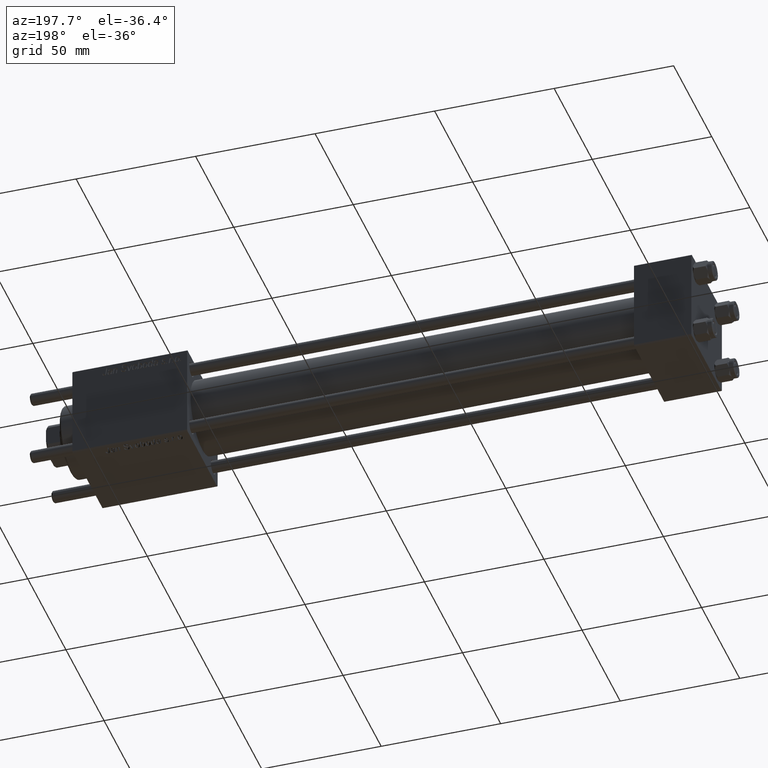
[diagram: clean part render]
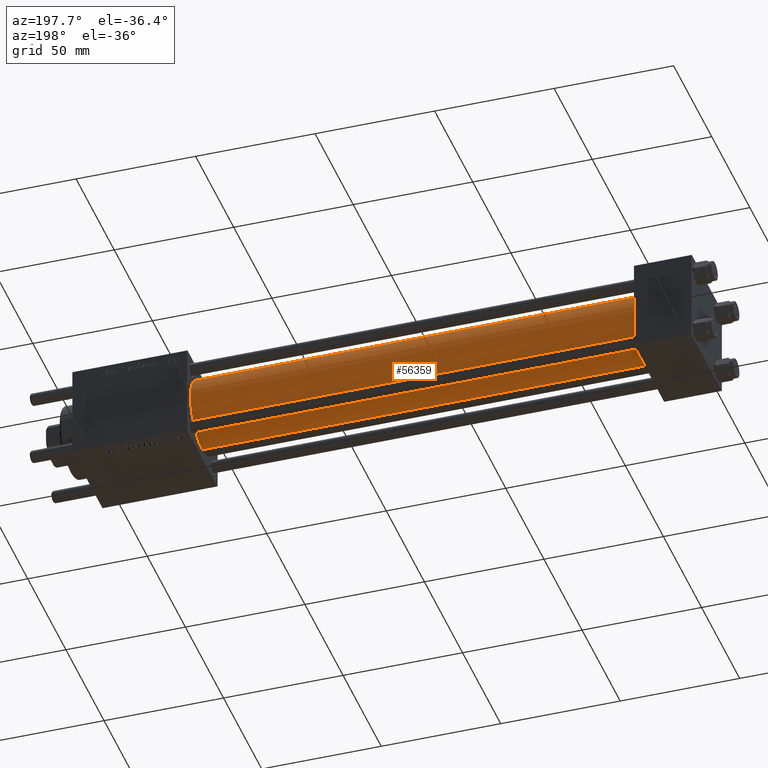
[diagram: same view with one face highlighted and labeled with its STEP entity id]
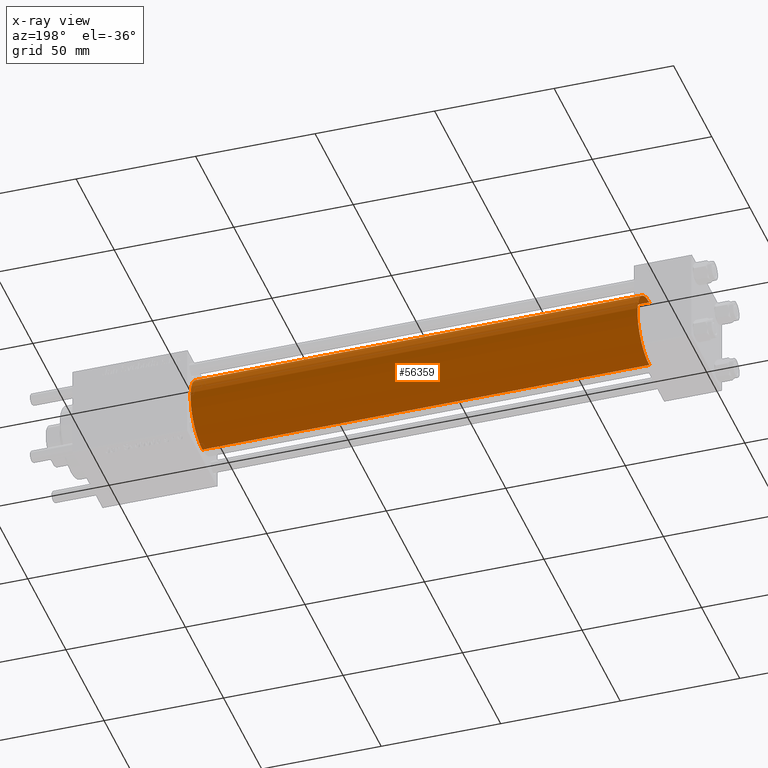
[diagram: x-ray of the same camera — body ghosted, the highlighted face saturated]
A machine part, auxiliary view. The second image highlights one B-rep face of the part: STEP entity #56359.
The next image is the same camera in x-ray: the body ghosted, the highlighted face saturated — about 0% of this face is hidden behind the body in this view.
In plain terms, the highlighted cylindrical surface (partial cylindrical patch) has radius 15.5 mm, axis along (-1, -0, -0).
Its self-contained STEP definition (entity closure, byte-faithful):
#1137 = LINE ( 'NONE', #5418, #15061 ) ;
#2729 = VERTEX_POINT ( 'NONE', #22041 ) ;
#5018 = ORIENTED_EDGE ( 'NONE', *, *, #25726, .T. ) ;
#5418 = CARTESIAN_POINT ( 'NONE',  ( 211.0000000000000000, -7.038826752868131828E-16, -15.50000000000000000 ) ) ;
#8361 = VECTOR ( 'NONE', #14295, 1000.000000000000000 ) ;
#14084 = DIRECTION ( 'NONE',  ( 1.000000000000000000, 0.000000000000000000, 0.000000000000000000 ) ) ;
#14157 = DIRECTION ( 'NONE',  ( 0.000000000000000000, 0.000000000000000000, 1.000000000000000000 ) ) ;
#14295 = DIRECTION ( 'NONE',  ( -1.000000000000000000, -0.000000000000000000, -0.000000000000000000 ) ) ;
#15061 = VECTOR ( 'NONE', #22914, 1000.000000000000000 ) ;
#18600 = LINE ( 'NONE', #36093, #8361 ) ;
#21203 = EDGE_CURVE ( 'NONE', #37595, #32059, #40554, .T. ) ;
#22041 = CARTESIAN_POINT ( 'NONE',  ( 23.99999999999999289, -2.602085213965210642E-15, 15.50000000000000000 ) ) ;
#22802 = ORIENTED_EDGE ( 'NONE', *, *, #24006, .T. ) ;
#22914 = DIRECTION ( 'NONE',  ( -1.000000000000000000, -0.000000000000000000, -0.000000000000000000 ) ) ;
#23253 = CIRCLE ( 'NONE', #37912, 15.50000000000000000 ) ;
#24006 = EDGE_CURVE ( 'NONE', #43369, #2729, #23253, .T. ) ;
#25726 = EDGE_CURVE ( 'NONE', #37595, #43369, #1137, .T. ) ;
#25939 = CARTESIAN_POINT ( 'NONE',  ( 23.99999999999999289, -7.038826752868131828E-16, -15.50000000000000000 ) ) ;
#25941 = CARTESIAN_POINT ( 'NONE',  ( 23.99999999999999289, -2.602085213965210642E-15, 0.000000000000000000 ) ) ;
#26977 = DIRECTION ( 'NONE',  ( -1.000000000000000000, -0.000000000000000000, -0.000000000000000000 ) ) ;
#27269 = CARTESIAN_POINT ( 'NONE',  ( 211.0000000000000000, -2.602085213965210642E-15, 0.000000000000000000 ) ) ;
#27310 = DIRECTION ( 'NONE',  ( 0.000000000000000000, 0.000000000000000000, -1.000000000000000000 ) ) ;
#30612 = EDGE_LOOP ( 'NONE', ( #49510, #5018, #22802, #39623 ) ) ;
#32059 = VERTEX_POINT ( 'NONE', #39339 ) ;
#34405 = AXIS2_PLACEMENT_3D ( 'NONE', #27269, #26977, #53053 ) ;
#36093 = CARTESIAN_POINT ( 'NONE',  ( 211.0000000000000000, -2.602085213965210642E-15, 15.50000000000000000 ) ) ;
#37595 = VERTEX_POINT ( 'NONE', #45588 ) ;
#37912 = AXIS2_PLACEMENT_3D ( 'NONE', #25941, #39977, #14157 ) ;
#39339 = CARTESIAN_POINT ( 'NONE',  ( 211.0000000000000000, -2.602085213965210642E-15, 15.50000000000000000 ) ) ;
#39623 = ORIENTED_EDGE ( 'NONE', *, *, #52139, .F. ) ;
#39977 = DIRECTION ( 'NONE',  ( 1.000000000000000000, 0.000000000000000000, 0.000000000000000000 ) ) ;
#40554 = CIRCLE ( 'NONE', #49736, 15.50000000000000000 ) ;
#41017 = CYLINDRICAL_SURFACE ( 'NONE', #34405, 15.50000000000000000 ) ;
#43369 = VERTEX_POINT ( 'NONE', #25939 ) ;
#45588 = CARTESIAN_POINT ( 'NONE',  ( 211.0000000000000000, -7.038826752868131828E-16, -15.50000000000000000 ) ) ;
#49044 = FACE_OUTER_BOUND ( 'NONE', #30612, .T. ) ;
#49510 = ORIENTED_EDGE ( 'NONE', *, *, #21203, .F. ) ;
#49736 = AXIS2_PLACEMENT_3D ( 'NONE', #53376, #14084, #27310 ) ;
#52139 = EDGE_CURVE ( 'NONE', #32059, #2729, #18600, .T. ) ;
#53053 = DIRECTION ( 'NONE',  ( 0.000000000000000000, 0.000000000000000000, 1.000000000000000000 ) ) ;
#53376 = CARTESIAN_POINT ( 'NONE',  ( 211.0000000000000000, -2.602085213965210642E-15, 0.000000000000000000 ) ) ;
#56359 = ADVANCED_FACE ( 'NONE', ( #49044 ), #41017, .T. ) ;